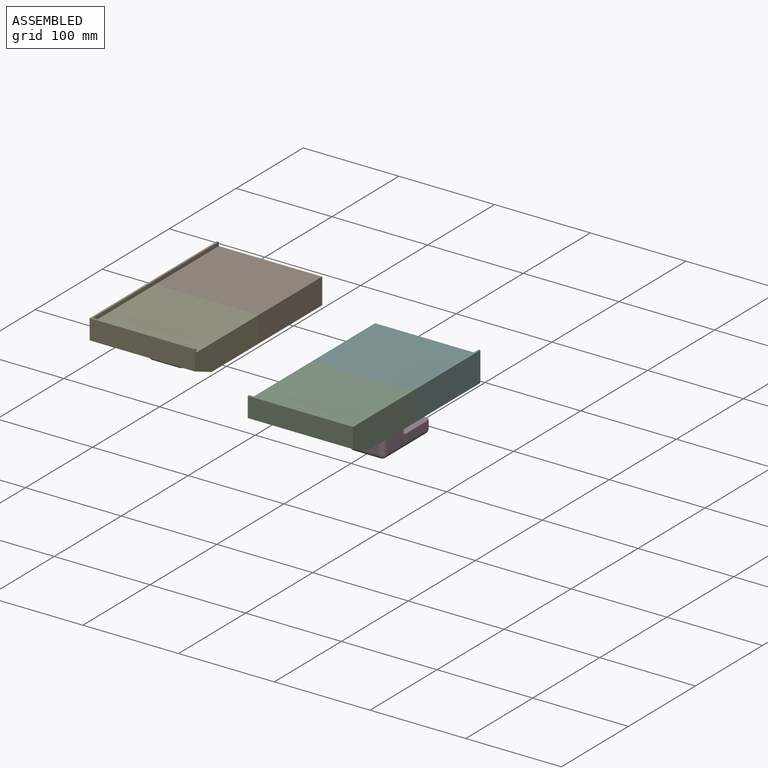
[diagram: assembled view]
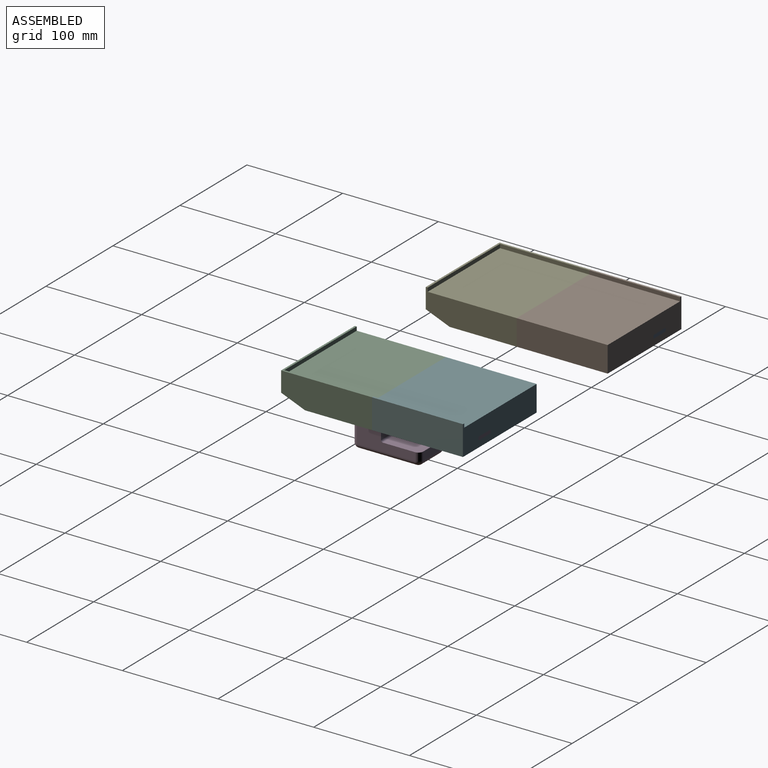
[diagram: assembled view, second angle]
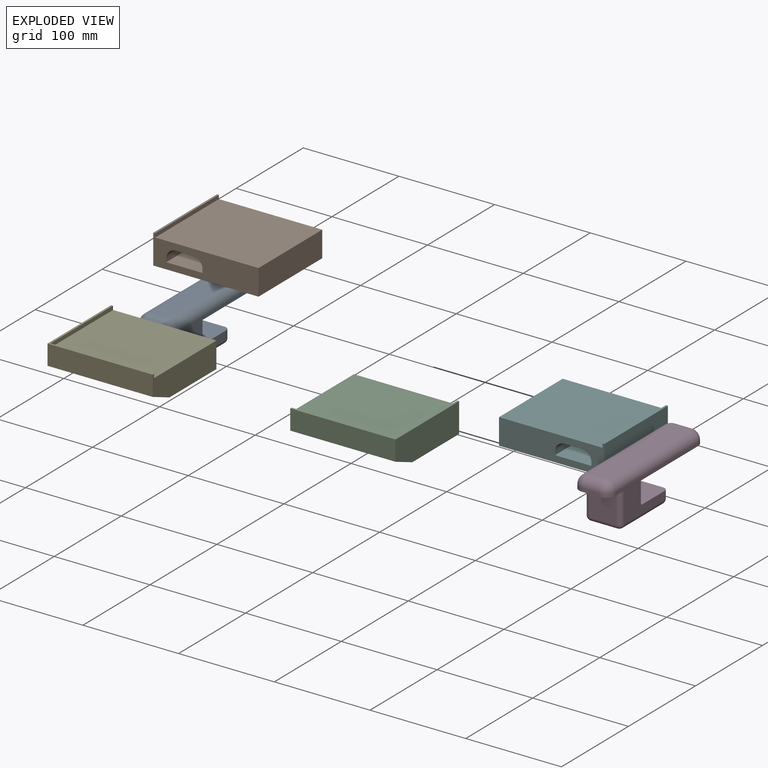
[diagram: exploded view]
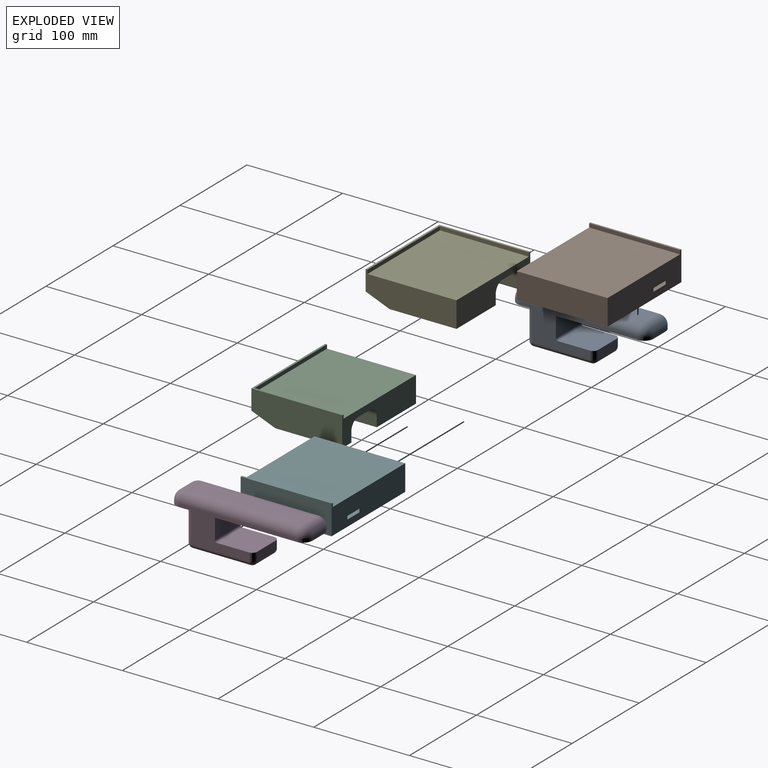
[diagram: exploded view, second angle]
ASSEMBLY  parts=6 mates=5
PART A: 37 faces, bbox 38x142.5x50.3 mm
  f0: plane 38x21.25mm, normal (0,1,0), area 807.5mm2, adj f3,f4,f5,f24
  f1: plane 38x22.5mm, normal (0,0,-1), area 632.8mm2, adj f3,f5,f6,f7,f9,f20,f25,f26
  f2: plane 122.5x18mm, normal (0,0,1), area 2205mm2, adj f8,f10,f16,f18
  f3: plane 122.5x35.25mm, normal (-1,0,0), area 1525.1mm2, adj f0,f1,f4,f7,f8,f12,f22,f24
  f4: plane 95x38mm, normal (0,0,-1), area 3567.1mm2, adj f0,f3,f5,f11,f12,f13
  f5: plane 122.5x35.25mm, normal (1,0,0), area 1525.1mm2, adj f0,f1,f4,f9,f10,f13,f22,f24
  f6: plane 18x3.5mm, normal (0,-1,0), area 63mm2, adj f1,f7,f9,f18
  f7: cylinder r=10mm len=10mm, axis (0,0,1), area 55mm2, adj f1,f3,f6,f19
  f8: cylinder r=10mm len=122.5mm, axis (0,-1,0), area 1924.2mm2, adj f2,f3,f14,f19
  f9: cylinder r=10mm len=10mm, axis (0,0,-1), area 55mm2, adj f1,f5,f6,f17
  f10: cylinder r=10mm len=122.5mm, axis (0,1,0), area 1924.2mm2, adj f2,f5,f15,f17
  f11: plane 18x3.5mm, normal (0,1,0), area 63mm2, adj f4,f12,f13,f16
  f12: cylinder r=10mm len=10mm, axis (0,0,-1), area 55mm2, adj f3,f4,f11,f14
  f13: cylinder r=10mm len=10mm, axis (0,0,1), area 55mm2, adj f4,f5,f11,f15
  f14: sphere r=10mm, area 157.1mm2, adj f8,f12,f16
  f15: sphere r=10mm, area 157.1mm2, adj f10,f13,f16
  f16: cylinder r=10mm len=18mm, axis (-1,0,0), area 282.7mm2, adj f2,f11,f14,f15
  f17: sphere r=10mm, area 157.1mm2, adj f9,f10,f18
  f18: cylinder r=10mm len=18mm, axis (1,0,0), area 282.7mm2, adj f2,f6,f17,f19
  f19: sphere r=10mm, area 157.1mm2, adj f7,f8,f18
  f20: plane 31.75x28mm, normal (0,-1,0), area 889mm2, adj f1,f25,f26,f27
  f21: plane 60.5x28mm, normal (0,0,-1), area 1694mm2, adj f27,f30,f33,f36
  f22: plane 38.5x38mm, normal (0,0,1), area 1452.3mm2, adj f3,f5,f23,f24,f31,f32
  f23: plane 28x8.5mm, normal (0,1,0), area 238mm2, adj f22,f31,f32,f36
  f24: cylinder r=2mm len=38mm, axis (1,0,0), area 119.4mm2, adj f0,f3,f5,f22
  f25: cylinder r=5mm len=31.75mm, axis (0,0,-1), area 249.4mm2, adj f1,f5,f20,f28
  f26: cylinder r=5mm len=31.75mm, axis (0,0,1), area 249.4mm2, adj f1,f3,f20,f29
  f27: cylinder r=5mm len=28mm, axis (1,0,0), area 219.9mm2, adj f20,f21,f28,f29
  f28: sphere r=5mm, area 39.3mm2, adj f25,f27,f30
  f29: sphere r=5mm, area 39.3mm2, adj f26,f27,f33
  f30: cylinder r=5mm len=60.5mm, axis (0,1,0), area 475.2mm2, adj f5,f21,f28,f34
  f31: cylinder r=5mm len=8.5mm, axis (0,0,1), area 66.8mm2, adj f5,f22,f23,f34
  f32: cylinder r=5mm len=8.5mm, axis (0,0,-1), area 66.8mm2, adj f3,f22,f23,f35
  f33: cylinder r=5mm len=60.5mm, axis (0,-1,0), area 475.2mm2, adj f3,f21,f29,f35
  f34: sphere r=5mm, area 39.3mm2, adj f30,f31,f36
  f35: sphere r=5mm, area 39.3mm2, adj f32,f33,f36
  f36: cylinder r=5mm len=28mm, axis (-1,0,0), area 219.9mm2, adj f21,f23,f34,f35
PART B: 19 faces, bbox 110x95x31 mm
  f0: plane 108x95mm, normal (0,0,1), area 10260mm2, adj f3,f5,f6,f18
  f1: plane 95x31mm, normal (-1,0,0), area 2945mm2, adj f2,f4,f6,f18
  f2: plane 110x95mm, normal (0,0,-1), area 10450mm2, adj f1,f5,f6,f18
  f3: plane 95x4mm, normal (1,0,0), area 380mm2, adj f0,f4,f6,f18
  f4: plane 95x2mm, normal (0,0,1), area 190mm2, adj f1,f3,f6,f18
  f5: plane 95x27mm, normal (1,0,0), area 2565mm2, adj f0,f2,f6,f18
  f6: plane 110x31mm, normal (0,-1,0), area 2507.9mm2, adj f0,f1,f2,f3,f4,f5,f7,f8
  f7: plane 85x18mm, normal (0,0,-1), area 1530mm2, adj f6,f12,f15,f17
  f8: plane 85x3.5mm, normal (1,0,0), area 297.5mm2, adj f6,f9,f11,f12
  f9: plane 95x38mm, normal (0,0,1), area 3567.1mm2, adj f6,f8,f10,f11,f14,f18
  f10: plane 85x3.5mm, normal (-1,0,0), area 297.5mm2, adj f6,f9,f14,f17
  f11: cylinder r=10mm len=10mm, axis (0,0,-1), area 55mm2, adj f8,f9,f13,f18
  f12: cylinder r=10mm len=85mm, axis (0,-1,0), area 1335.2mm2, adj f6,f7,f8,f13
  f13: sphere r=10mm, area 157.1mm2, adj f11,f12,f15
  f14: cylinder r=10mm len=10mm, axis (0,0,1), area 55mm2, adj f9,f10,f16,f18
  f15: cylinder r=10mm len=18mm, axis (-1,0,0), area 282.7mm2, adj f7,f13,f16,f18
  f16: sphere r=10mm, area 157.1mm2, adj f14,f15,f17
  f17: cylinder r=10mm len=85mm, axis (0,1,0), area 1335.2mm2, adj f6,f7,f10,f16
  f18: plane 110x31mm, normal (0,1,0), area 2915mm2, adj f0,f1,f2,f3,f4,f5,f9,f11
PART C: 25 faces, bbox 110x95x31 mm
  f0: plane 110x21mm, normal (0,-1,0), area 2310mm2, adj f4,f7,f23,f24
  f1: plane 110x31mm, normal (0,1,0), area 2251.4mm2, adj f2,f4,f5,f6,f7,f8,f9,f11
  f2: plane 108x93mm, normal (0,0,1), area 10044mm2, adj f1,f3,f6,f23
  f3: plane 108x4mm, normal (0,1,0), area 432mm2, adj f2,f6,f7,f23
  f4: plane 95x31mm, normal (1,0,0), area 2820mm2, adj f0,f1,f5,f7,f24
  f5: plane 110x70mm, normal (0,0,-1), area 6570.7mm2, adj f1,f4,f9,f11,f17,f21,f22,f23
  f6: plane 93x4mm, normal (-1,0,0), area 372mm2, adj f1,f2,f3,f7
  f7: plane 110x95mm, normal (0,0,1), area 406mm2, adj f0,f1,f3,f4,f6,f23
  f8: plane 37.5x18mm, normal (0,0,-1), area 675mm2, adj f1,f14,f16,f19
  f9: plane 37.5x10.25mm, normal (1,0,0), area 300mm2, adj f1,f5,f10,f13,f14,f21
  f10: plane 38x22.5mm, normal (0,0,1), area 632.8mm2, adj f9,f11,f12,f13,f15,f17,f21,f22
  f11: plane 37.5x10.25mm, normal (-1,0,0), area 300mm2, adj f1,f5,f10,f15,f16,f22
  f12: plane 18x3.5mm, normal (0,1,0), area 63mm2, adj f10,f13,f15,f19
  f13: cylinder r=10mm len=10mm, axis (0,0,-1), area 55mm2, adj f9,f10,f12,f20
  f14: cylinder r=10mm len=37.5mm, axis (0,1,0), area 589mm2, adj f1,f8,f9,f20
  f15: cylinder r=10mm len=10mm, axis (0,0,1), area 55mm2, adj f10,f11,f12,f18
  f16: cylinder r=10mm len=37.5mm, axis (0,-1,0), area 589mm2, adj f1,f8,f11,f18
  f17: plane 28x6.75mm, normal (0,1,0), area 189mm2, adj f5,f10,f21,f22
  f18: sphere r=10mm, area 157.1mm2, adj f15,f16,f19
  f19: cylinder r=10mm len=18mm, axis (-1,0,0), area 282.7mm2, adj f8,f12,f18,f20
  f20: sphere r=10mm, area 157.1mm2, adj f13,f14,f19
  f21: cylinder r=5mm len=6.75mm, axis (0,0,1), area 53mm2, adj f5,f9,f10,f17
  f22: cylinder r=5mm len=6.75mm, axis (0,0,-1), area 53mm2, adj f5,f10,f11,f17
  f23: plane 95x31mm, normal (-1,0,0), area 2448mm2, adj f0,f1,f2,f3,f5,f7,f24
  f24: plane 110x25mm, normal (0,-0.37,-0.93), area 2961.8mm2, adj f0,f4,f5,f23
PART D: same geometry as A
PART E: 25 faces, bbox 110x95x31 mm
  f0: plane 110x21mm, normal (0,-1,0), area 2310mm2, adj f4,f7,f23,f24
  f1: plane 110x31mm, normal (0,1,0), area 2251.4mm2, adj f2,f4,f5,f6,f7,f8,f9,f11
  f2: plane 108x93mm, normal (0,0,1), area 10044mm2, adj f1,f3,f6,f23
  f3: plane 108x4mm, normal (0,1,0), area 432mm2, adj f2,f6,f7,f23
  f4: plane 95x31mm, normal (-1,0,0), area 2820mm2, adj f0,f1,f5,f7,f24
  f5: plane 110x70mm, normal (0,0,-1), area 6570.7mm2, adj f1,f4,f9,f11,f17,f21,f22,f23
  f6: plane 93x4mm, normal (1,0,0), area 372mm2, adj f1,f2,f3,f7
  f7: plane 110x95mm, normal (0,0,1), area 406mm2, adj f0,f1,f3,f4,f6,f23
  f8: plane 37.5x18mm, normal (0,0,-1), area 675mm2, adj f1,f14,f16,f19
  f9: plane 37.5x10.25mm, normal (-1,0,0), area 300mm2, adj f1,f5,f10,f13,f14,f21
  f10: plane 38x22.5mm, normal (0,0,1), area 632.8mm2, adj f9,f11,f12,f13,f15,f17,f21,f22
  f11: plane 37.5x10.25mm, normal (1,0,0), area 300mm2, adj f1,f5,f10,f15,f16,f22
  f12: plane 18x3.5mm, normal (0,1,0), area 63mm2, adj f10,f13,f15,f19
  f13: cylinder r=10mm len=10mm, axis (0,0,-1), area 55mm2, adj f9,f10,f12,f20
  f14: cylinder r=10mm len=37.5mm, axis (0,1,0), area 589mm2, adj f1,f8,f9,f20
  f15: cylinder r=10mm len=10mm, axis (0,0,1), area 55mm2, adj f10,f11,f12,f18
  f16: cylinder r=10mm len=37.5mm, axis (0,-1,0), area 589mm2, adj f1,f8,f11,f18
  f17: plane 28x6.75mm, normal (0,1,0), area 189mm2, adj f5,f10,f21,f22
  f18: sphere r=10mm, area 157.1mm2, adj f15,f16,f19
  f19: cylinder r=10mm len=18mm, axis (1,0,0), area 282.7mm2, adj f8,f12,f18,f20
  f20: sphere r=10mm, area 157.1mm2, adj f13,f14,f19
  f21: cylinder r=5mm len=6.75mm, axis (0,0,1), area 53mm2, adj f5,f9,f10,f17
  f22: cylinder r=5mm len=6.75mm, axis (0,0,-1), area 53mm2, adj f5,f10,f11,f17
  f23: plane 95x31mm, normal (1,0,0), area 2448mm2, adj f0,f1,f2,f3,f5,f7,f24
  f24: plane 110x25mm, normal (0,-0.37,-0.93), area 2961.8mm2, adj f0,f4,f5,f23
PART F: 19 faces, bbox 110x95x31 mm
  f0: plane 108x95mm, normal (0,0,1), area 10260mm2, adj f3,f5,f6,f18
  f1: plane 95x31mm, normal (1,0,0), area 2945mm2, adj f2,f4,f6,f18
  f2: plane 110x95mm, normal (0,0,-1), area 10450mm2, adj f1,f5,f6,f18
  f3: plane 95x4mm, normal (-1,0,0), area 380mm2, adj f0,f4,f6,f18
  f4: plane 95x2mm, normal (0,0,1), area 190mm2, adj f1,f3,f6,f18
  f5: plane 95x27mm, normal (-1,0,0), area 2565mm2, adj f0,f2,f6,f18
  f6: plane 110x31mm, normal (0,-1,0), area 2507.9mm2, adj f0,f1,f2,f3,f4,f5,f7,f8
  f7: plane 85x18mm, normal (0,0,-1), area 1530mm2, adj f6,f12,f15,f17
  f8: plane 85x3.5mm, normal (-1,0,0), area 297.5mm2, adj f6,f9,f11,f12
  f9: plane 95x38mm, normal (0,0,1), area 3567.1mm2, adj f6,f8,f10,f11,f14,f18
  f10: plane 85x3.5mm, normal (1,0,0), area 297.5mm2, adj f6,f9,f14,f17
  f11: cylinder r=10mm len=10mm, axis (0,0,-1), area 55mm2, adj f8,f9,f13,f18
  f12: cylinder r=10mm len=85mm, axis (0,-1,0), area 1335.2mm2, adj f6,f7,f8,f13
  f13: sphere r=10mm, area 157.1mm2, adj f11,f12,f15
  f14: cylinder r=10mm len=10mm, axis (0,0,1), area 55mm2, adj f9,f10,f16,f18
  f15: cylinder r=10mm len=18mm, axis (1,0,0), area 282.7mm2, adj f7,f13,f16,f18
  f16: sphere r=10mm, area 157.1mm2, adj f14,f15,f17
  f17: cylinder r=10mm len=85mm, axis (0,1,0), area 1335.2mm2, adj f6,f7,f10,f16
  f18: plane 110x31mm, normal (0,1,0), area 2915mm2, adj f0,f1,f2,f3,f4,f5,f9,f11
PLACE A t=(54.65,163.35,59.08)mm
PLACE B t=(-244.57,70.93,119.73)mm
PLACE C t=(101.75,60.55,104.09)mm
PLACE D t=(281.57,139.55,43.44)mm
PLACE E t=(29.83,84.35,119.73)mm
PLACE F t=(-172.66,47.12,104.09)mm
MATE fastened D.f1 <-> C.f10  axis (0,0,-1) through (208.52,101.41,110.84)mm
MATE slider A.f10 <-> E.f14  axis (0,1,0) through (-9.4,187.1,129.98)mm
MATE fastened D.f4 <-> F.f9  axis (0,0,-1) through (208.52,186.5,110.84)mm
MATE fastened A.f1 <-> E.f10  axis (0,0,-1) through (-18.4,125.21,126.48)mm
MATE fastened A.f4 <-> B.f9  axis (0,0,-1) through (-18.4,210.31,126.48)mm
